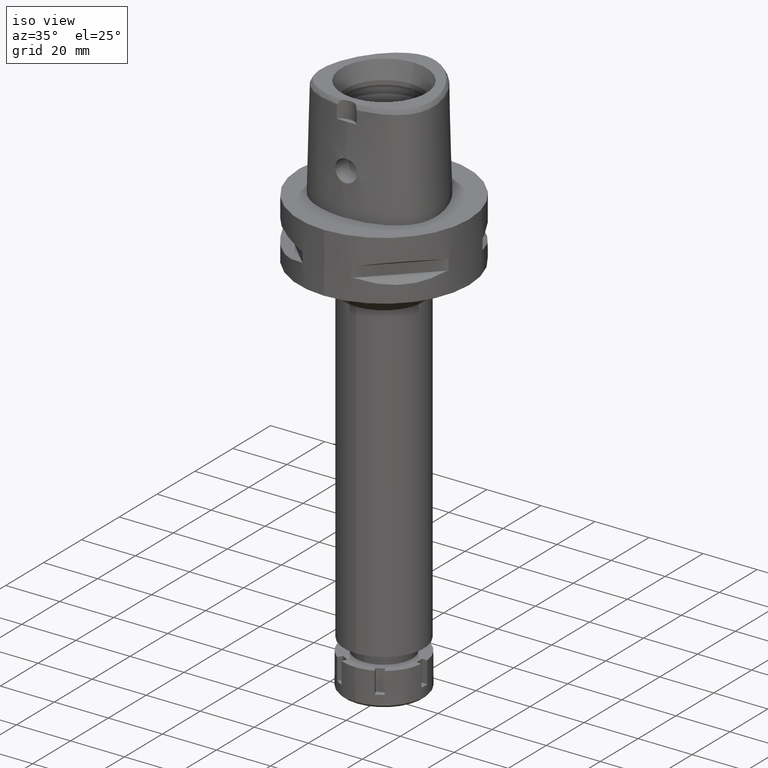
[diagram: clean part render]
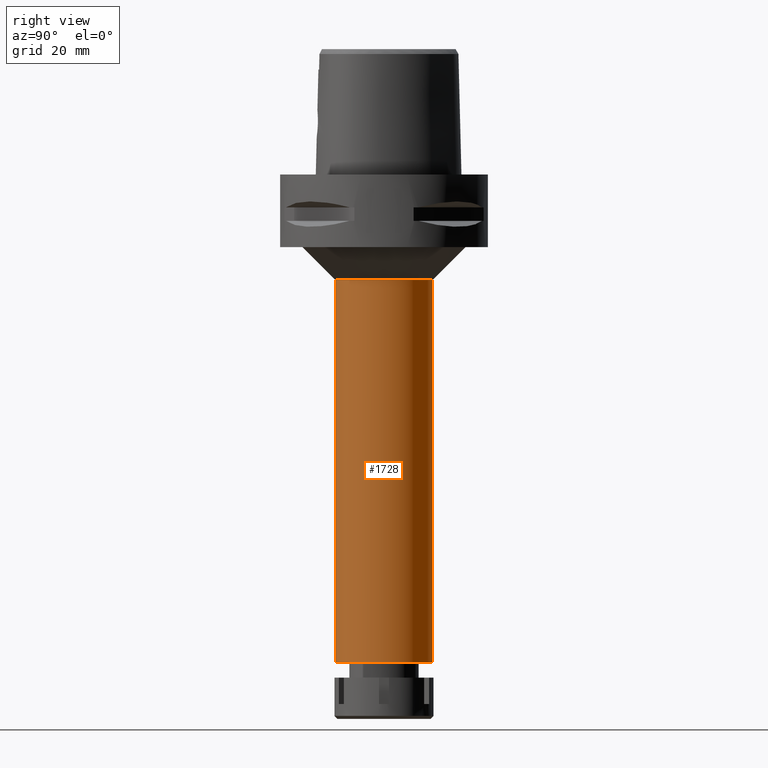
[diagram: tour spotlight — one face highlighted and labeled with its STEP entity id]
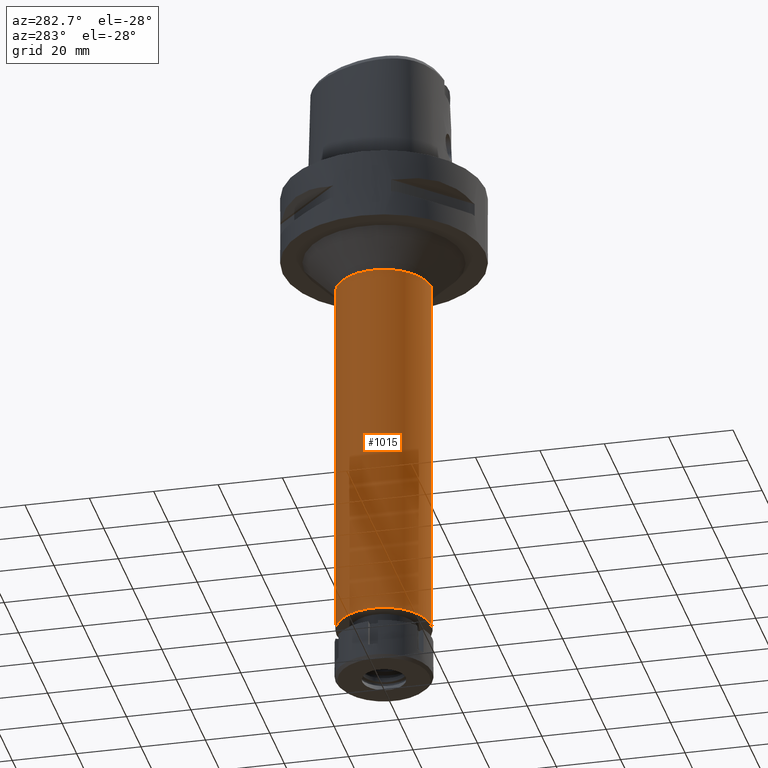
[diagram: tour spotlight — one face highlighted and labeled with its STEP entity id]
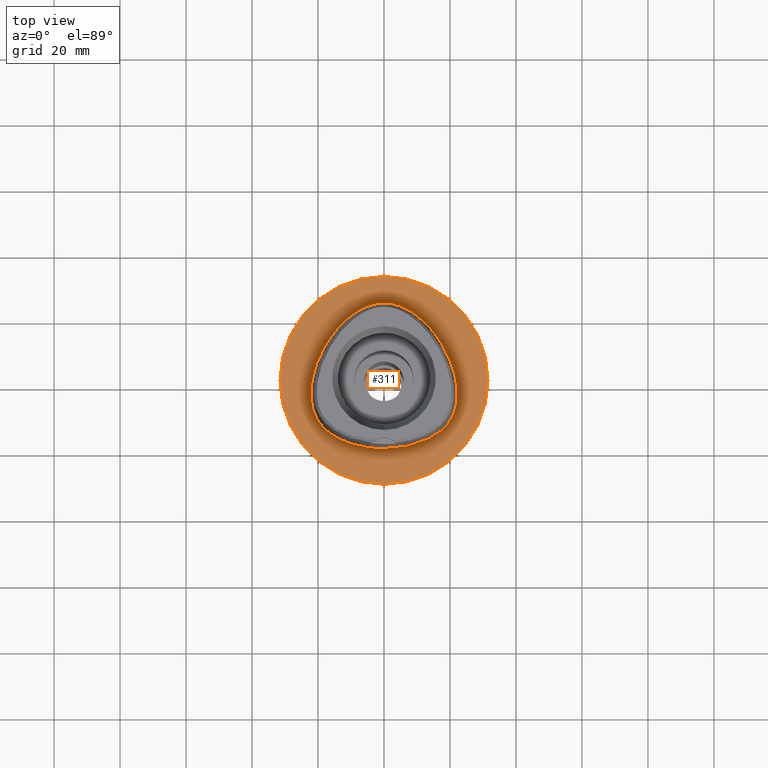
[diagram: tour spotlight — one face highlighted and labeled with its STEP entity id]
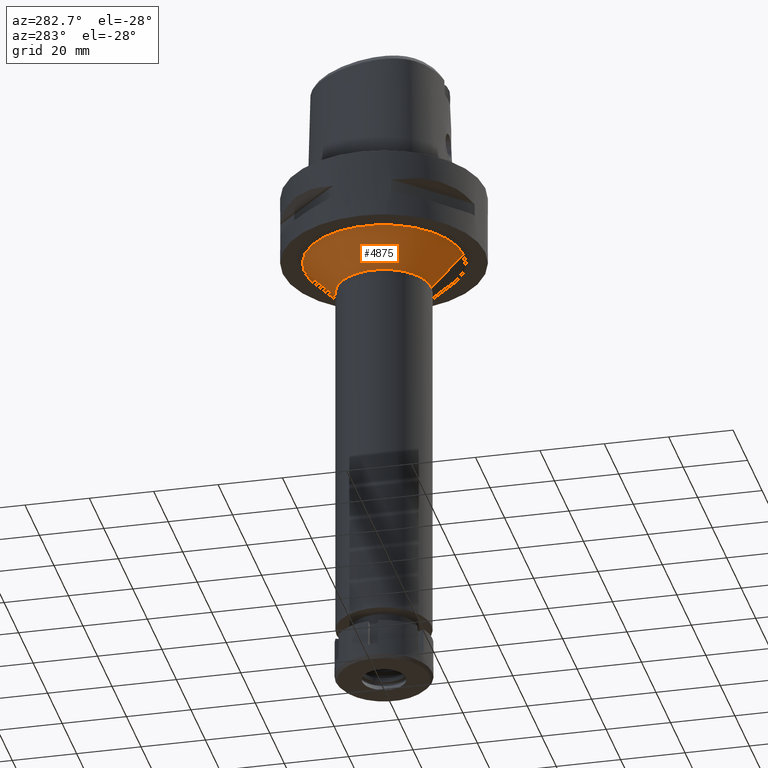
[diagram: tour spotlight — one face highlighted and labeled with its STEP entity id]
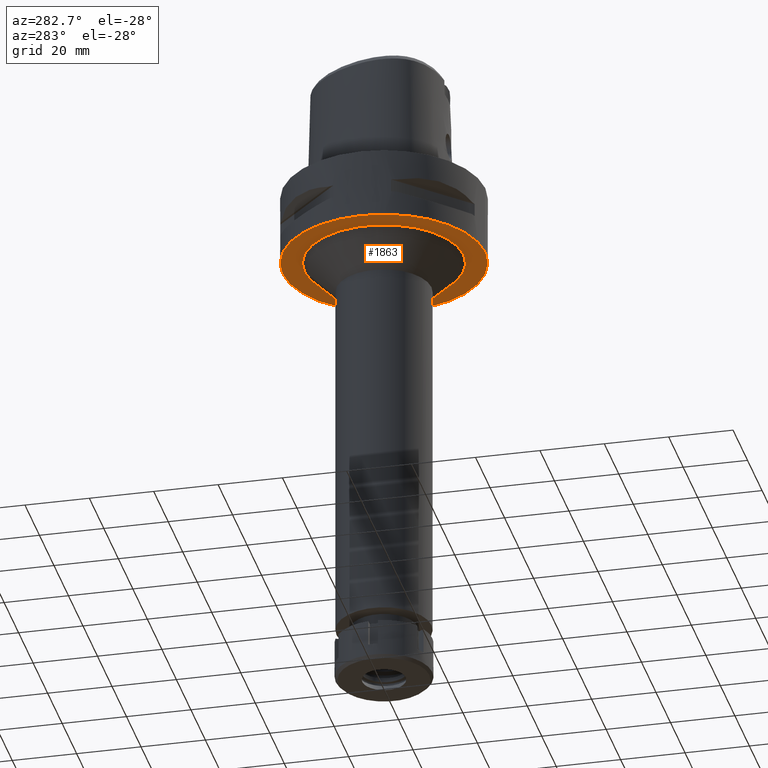
[diagram: tour spotlight — one face highlighted and labeled with its STEP entity id]
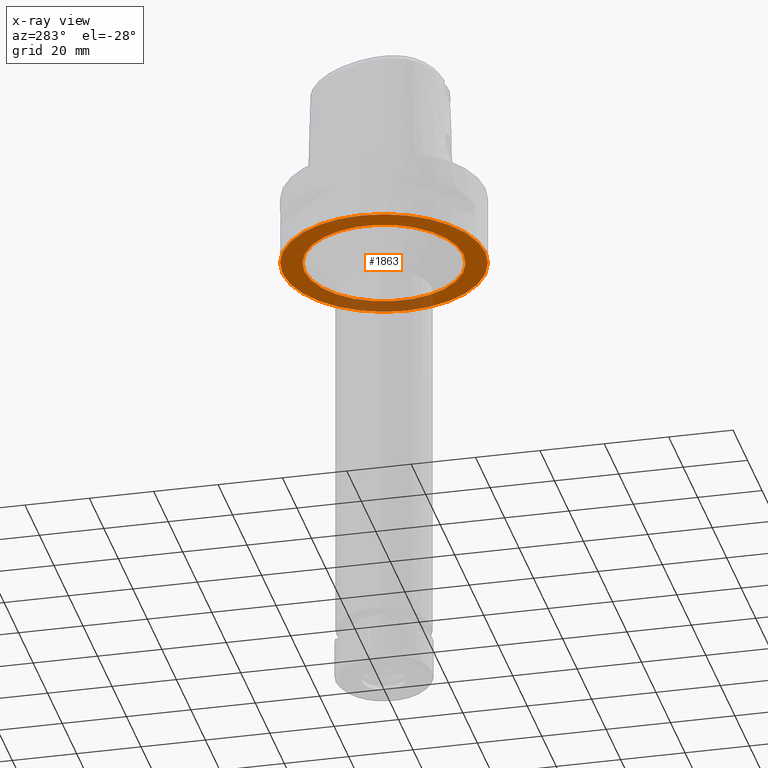
[diagram: x-ray of the same camera — body ghosted, this tour face saturated]
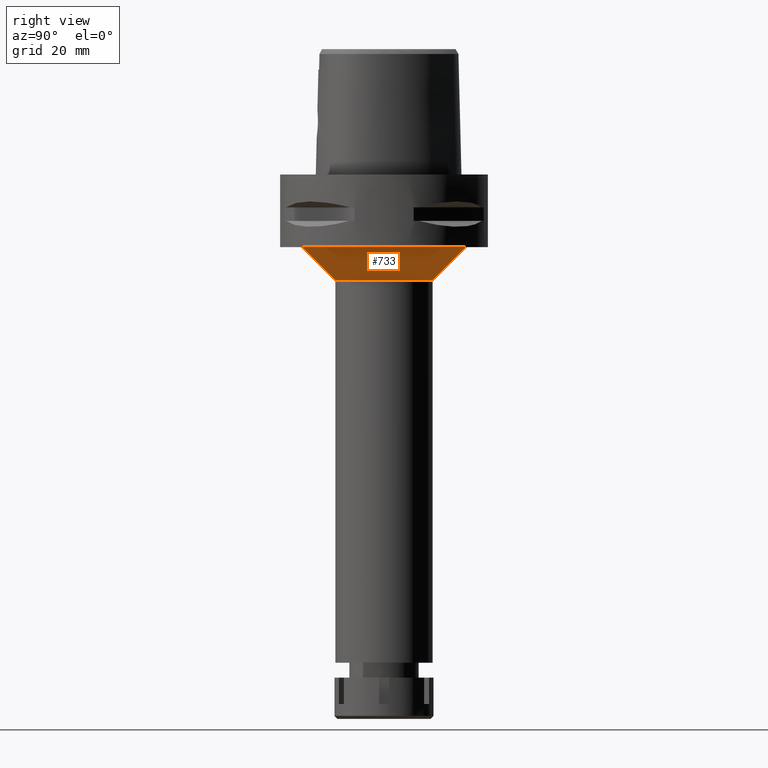
[diagram: tour spotlight — one face highlighted and labeled with its STEP entity id]
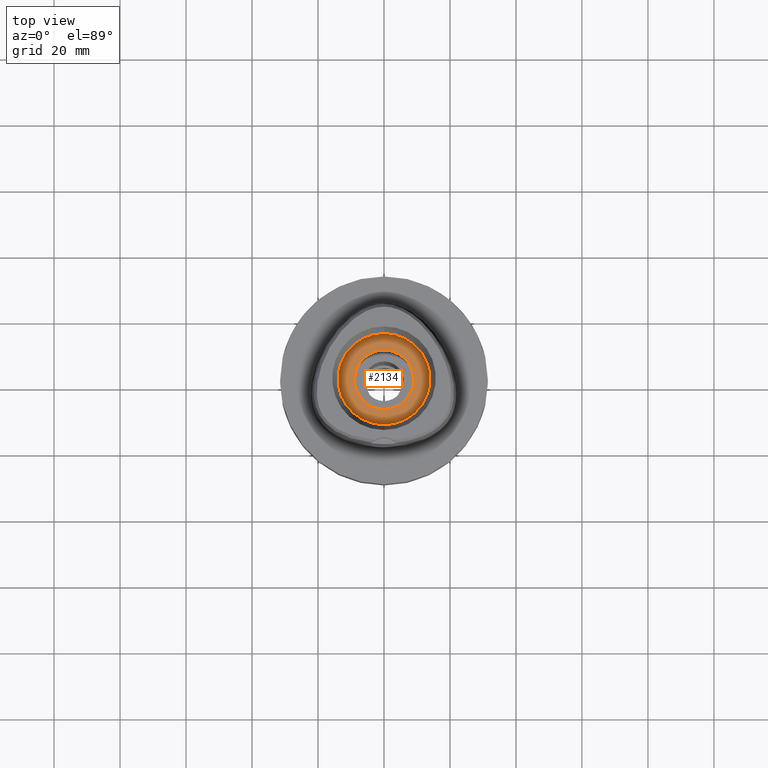
[diagram: tour spotlight — one face highlighted and labeled with its STEP entity id]
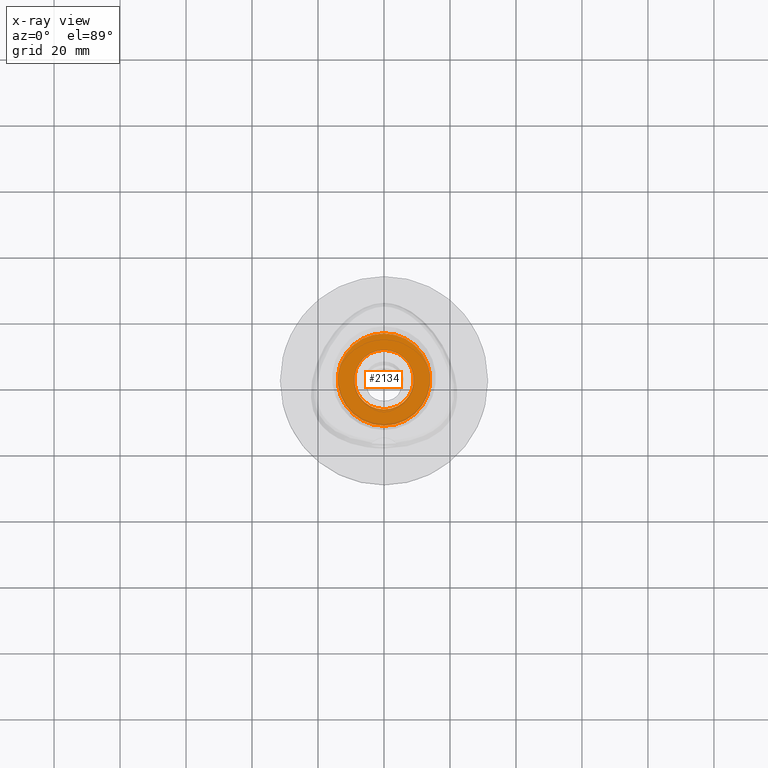
[diagram: x-ray of the same camera — body ghosted, this tour face saturated]
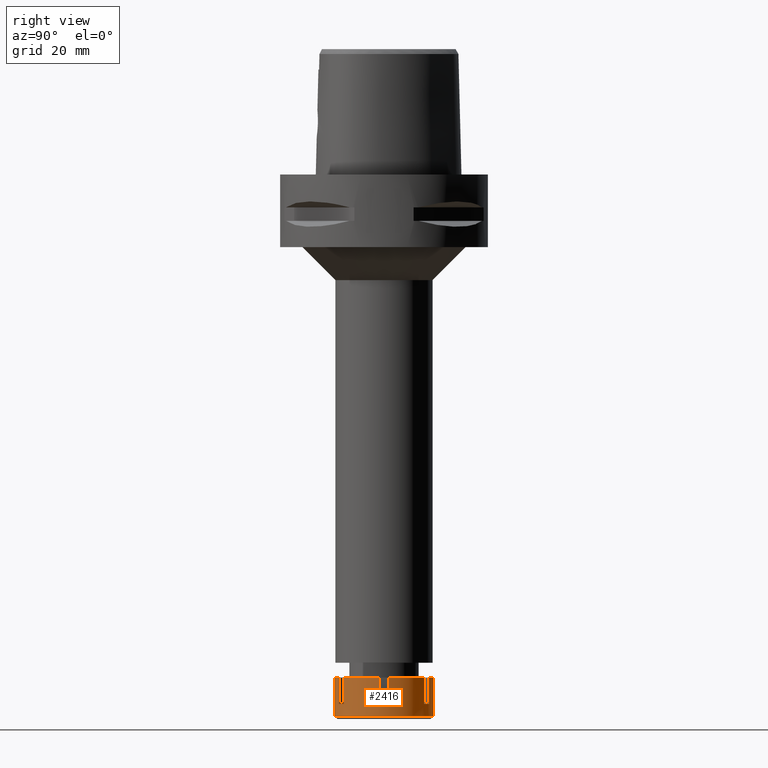
[diagram: tour spotlight — one face highlighted and labeled with its STEP entity id]
A machine part: a face-by-face anatomy tour. The part has 112 B-rep faces; the first image is the clean iso view, then the 8 largest visible faces are spotlighted one at a time (largest first), each with its STEP entity span.

Face 1 — right view, entity #1728. In plain terms, the highlighted cylindrical surface (partial cylindrical patch) has radius 14.75 mm, axis along (0, 0, -1).
Definition (entity closure, byte-faithful):
#256 = CARTESIAN_POINT ( 'NONE',  ( 0.0000000000000000000, -14.75000000000000000, -32.00000000000000000 ) ) ;
#756 = DIRECTION ( 'NONE',  ( 0.0000000000000000000, 0.0000000000000000000, -1.000000000000000000 ) ) ;
#933 = DIRECTION ( 'NONE',  ( 0.0000000000000000000, -1.000000000000000000, 0.0000000000000000000 ) ) ;
#958 = VERTEX_POINT ( 'NONE', #5063 ) ;
#977 = VERTEX_POINT ( 'NONE', #1215 ) ;
#1108 = FACE_OUTER_BOUND ( 'NONE', #4497, .T. ) ;
#1169 = CIRCLE ( 'NONE', #3490, 14.75000000000000000 ) ;
#1196 = CARTESIAN_POINT ( 'NONE',  ( 0.0000000000000000000, 1.321393896280000074E-14, 7.900000000000000355 ) ) ;
#1215 = CARTESIAN_POINT ( 'NONE',  ( 0.0000000000000000000, 14.75000000000000000, -32.00000000000000000 ) ) ;
#1284 = CARTESIAN_POINT ( 'NONE',  ( 0.0000000000000000000, -14.75000000000000000, -148.0000000000000000 ) ) ;
#1375 = EDGE_CURVE ( 'NONE', #2932, #4360, #3815, .T. ) ;
#1426 = CIRCLE ( 'NONE', #4218, 14.75000000000000000 ) ;
#1711 = LINE ( 'NONE', #3817, #5188 ) ;
#1728 = ADVANCED_FACE ( 'NONE', ( #1108 ), #5374, .T. ) ;
#1809 = DIRECTION ( 'NONE',  ( 0.0000000000000000000, 0.0000000000000000000, 1.000000000000000000 ) ) ;
#2004 = ORIENTED_EDGE ( 'NONE', *, *, #4324, .T. ) ;
#2008 = EDGE_CURVE ( 'NONE', #977, #2932, #1426, .T. ) ;
#2069 = DIRECTION ( 'NONE',  ( 0.0000000000000000000, 0.0000000000000000000, -1.000000000000000000 ) ) ;
#2656 = EDGE_CURVE ( 'NONE', #977, #958, #1711, .T. ) ;
#2916 = DIRECTION ( 'NONE',  ( 0.0000000000000000000, -1.000000000000000000, 0.0000000000000000000 ) ) ;
#2932 = VERTEX_POINT ( 'NONE', #256 ) ;
#3486 = AXIS2_PLACEMENT_3D ( 'NONE', #1196, #2069, #2916 ) ;
#3490 = AXIS2_PLACEMENT_3D ( 'NONE', #4684, #1809, #933 ) ;
#3815 = LINE ( 'NONE', #5522, #4396 ) ;
#3817 = CARTESIAN_POINT ( 'NONE',  ( 0.0000000000000000000, 14.75000000000000000, -32.00000000000000000 ) ) ;
#3876 = DIRECTION ( 'NONE',  ( 0.0000000000000000000, 0.0000000000000000000, -1.000000000000000000 ) ) ;
#4218 = AXIS2_PLACEMENT_3D ( 'NONE', #5540, #3876, #5513 ) ;
#4324 = EDGE_CURVE ( 'NONE', #4360, #958, #1169, .T. ) ;
#4341 = ORIENTED_EDGE ( 'NONE', *, *, #2008, .T. ) ;
#4360 = VERTEX_POINT ( 'NONE', #1284 ) ;
#4396 = VECTOR ( 'NONE', #756, 1000.000000000000000 ) ;
#4497 = EDGE_LOOP ( 'NONE', ( #4341, #4812, #2004, #5476 ) ) ;
#4684 = CARTESIAN_POINT ( 'NONE',  ( 0.0000000000000000000, 1.321393896280000074E-14, -148.0000000000000000 ) ) ;
#4812 = ORIENTED_EDGE ( 'NONE', *, *, #1375, .T. ) ;
#5063 = CARTESIAN_POINT ( 'NONE',  ( 0.0000000000000000000, 14.75000000000000000, -148.0000000000000000 ) ) ;
#5158 = DIRECTION ( 'NONE',  ( 0.0000000000000000000, 0.0000000000000000000, -1.000000000000000000 ) ) ;
#5188 = VECTOR ( 'NONE', #5158, 1000.000000000000000 ) ;
#5374 = CYLINDRICAL_SURFACE ( 'NONE', #3486, 14.75000000000000000 ) ;
#5476 = ORIENTED_EDGE ( 'NONE', *, *, #2656, .F. ) ;
#5513 = DIRECTION ( 'NONE',  ( 0.0000000000000000000, 1.000000000000000000, 0.0000000000000000000 ) ) ;
#5522 = CARTESIAN_POINT ( 'NONE',  ( 0.0000000000000000000, -14.75000000000000000, -32.00000000000000000 ) ) ;
#5540 = CARTESIAN_POINT ( 'NONE',  ( 0.0000000000000000000, 0.0000000000000000000, -32.00000000000000000 ) ) ;

Face 2 — auxiliary view, entity #1015. In plain terms, the highlighted cylindrical surface (partial cylindrical patch) has radius 14.75 mm, axis along (0, 0, -1).
Definition (entity closure, byte-faithful):
#256 = CARTESIAN_POINT ( 'NONE',  ( 0.0000000000000000000, -14.75000000000000000, -32.00000000000000000 ) ) ;
#370 = CARTESIAN_POINT ( 'NONE',  ( 0.0000000000000000000, 1.321393896280000074E-14, -148.0000000000000000 ) ) ;
#756 = DIRECTION ( 'NONE',  ( 0.0000000000000000000, 0.0000000000000000000, -1.000000000000000000 ) ) ;
#793 = AXIS2_PLACEMENT_3D ( 'NONE', #3278, #1113, #2440 ) ;
#958 = VERTEX_POINT ( 'NONE', #5063 ) ;
#977 = VERTEX_POINT ( 'NONE', #1215 ) ;
#1015 = ADVANCED_FACE ( 'NONE', ( #4709 ), #2160, .T. ) ;
#1113 = DIRECTION ( 'NONE',  ( 0.0000000000000000000, 0.0000000000000000000, -1.000000000000000000 ) ) ;
#1215 = CARTESIAN_POINT ( 'NONE',  ( 0.0000000000000000000, 14.75000000000000000, -32.00000000000000000 ) ) ;
#1284 = CARTESIAN_POINT ( 'NONE',  ( 0.0000000000000000000, -14.75000000000000000, -148.0000000000000000 ) ) ;
#1375 = EDGE_CURVE ( 'NONE', #2932, #4360, #3815, .T. ) ;
#1535 = CIRCLE ( 'NONE', #3764, 14.75000000000000000 ) ;
#1711 = LINE ( 'NONE', #3817, #5188 ) ;
#1733 = CARTESIAN_POINT ( 'NONE',  ( 0.0000000000000000000, 1.321393896280000074E-14, 7.900000000000000355 ) ) ;
#1822 = ORIENTED_EDGE ( 'NONE', *, *, #2040, .T. ) ;
#2002 = ORIENTED_EDGE ( 'NONE', *, *, #2656, .T. ) ;
#2040 = EDGE_CURVE ( 'NONE', #958, #4360, #1535, .T. ) ;
#2080 = AXIS2_PLACEMENT_3D ( 'NONE', #1733, #3446, #3020 ) ;
#2160 = CYLINDRICAL_SURFACE ( 'NONE', #2080, 14.75000000000000000 ) ;
#2440 = DIRECTION ( 'NONE',  ( 0.0000000000000000000, -1.000000000000000000, 0.0000000000000000000 ) ) ;
#2651 = DIRECTION ( 'NONE',  ( 0.0000000000000000000, 1.000000000000000000, 0.0000000000000000000 ) ) ;
#2656 = EDGE_CURVE ( 'NONE', #977, #958, #1711, .T. ) ;
#2814 = EDGE_LOOP ( 'NONE', ( #1822, #5071, #4210, #2002 ) ) ;
#2932 = VERTEX_POINT ( 'NONE', #256 ) ;
#3020 = DIRECTION ( 'NONE',  ( 0.0000000000000000000, -1.000000000000000000, 0.0000000000000000000 ) ) ;
#3278 = CARTESIAN_POINT ( 'NONE',  ( 0.0000000000000000000, 0.0000000000000000000, -32.00000000000000000 ) ) ;
#3446 = DIRECTION ( 'NONE',  ( 0.0000000000000000000, 0.0000000000000000000, -1.000000000000000000 ) ) ;
#3764 = AXIS2_PLACEMENT_3D ( 'NONE', #370, #5148, #2651 ) ;
#3815 = LINE ( 'NONE', #5522, #4396 ) ;
#3817 = CARTESIAN_POINT ( 'NONE',  ( 0.0000000000000000000, 14.75000000000000000, -32.00000000000000000 ) ) ;
#4210 = ORIENTED_EDGE ( 'NONE', *, *, #4738, .T. ) ;
#4360 = VERTEX_POINT ( 'NONE', #1284 ) ;
#4396 = VECTOR ( 'NONE', #756, 1000.000000000000000 ) ;
#4709 = FACE_OUTER_BOUND ( 'NONE', #2814, .T. ) ;
#4738 = EDGE_CURVE ( 'NONE', #2932, #977, #5539, .T. ) ;
#5063 = CARTESIAN_POINT ( 'NONE',  ( 0.0000000000000000000, 14.75000000000000000, -148.0000000000000000 ) ) ;
#5071 = ORIENTED_EDGE ( 'NONE', *, *, #1375, .F. ) ;
#5148 = DIRECTION ( 'NONE',  ( 0.0000000000000000000, 0.0000000000000000000, 1.000000000000000000 ) ) ;
#5158 = DIRECTION ( 'NONE',  ( 0.0000000000000000000, 0.0000000000000000000, -1.000000000000000000 ) ) ;
#5188 = VECTOR ( 'NONE', #5158, 1000.000000000000000 ) ;
#5522 = CARTESIAN_POINT ( 'NONE',  ( 0.0000000000000000000, -14.75000000000000000, -32.00000000000000000 ) ) ;
#5539 = CIRCLE ( 'NONE', #793, 14.75000000000000000 ) ;

Face 3 — top view, entity #311. In plain terms, the highlighted planar face has unit normal (0, 0, -1).
Definition (entity closure, byte-faithful):
#39 = CARTESIAN_POINT ( 'NONE',  ( 0.0000000000000000000, 1.224646799146999965E-14, 0.0000000000000000000 ) ) ;
#49 = EDGE_CURVE ( 'NONE', #1065, #1573, #5286, .T. ) ;
#53 = ORIENTED_EDGE ( 'NONE', *, *, #5172, .F. ) ;
#79 = CARTESIAN_POINT ( 'NONE',  ( 20.74942740880193526, 4.657187500000056879, 5.247538514829841461E-14 ) ) ;
#96 = FACE_BOUND ( 'NONE', #3449, .T. ) ;
#103 = CARTESIAN_POINT ( 'NONE',  ( 21.55524826009751038, -8.996025390624708962, 5.247538514829841461E-14 ) ) ;
#131 = CARTESIAN_POINT ( 'NONE',  ( 14.40795638957788327, 15.64093750000730765, 5.247538514829841461E-14 ) ) ;
#198 = CARTESIAN_POINT ( 'NONE',  ( 3.796788964451000297E-11, 23.47499999999000053, 6.972200594645999482E-14 ) ) ;
#311 = ADVANCED_FACE ( 'NONE', ( #4389, #96 ), #2627, .F. ) ;
#314 = DIRECTION ( 'NONE',  ( 0.0000000000000000000, 0.0000000000000000000, -1.000000000000000000 ) ) ;
#340 = CARTESIAN_POINT ( 'NONE',  ( -14.67337966171797170, -17.21410159326269707, -1.411724549380769661E-06 ) ) ;
#456 = CARTESIAN_POINT ( 'NONE',  ( 3.796788964451000297E-11, 23.47499999999000053, 6.972200594645999482E-14 ) ) ;
#482 = CARTESIAN_POINT ( 'NONE',  ( 14.67337964420057617, -17.21410156249941892, 5.247538514829841461E-14 ) ) ;
#530 = DIRECTION ( 'NONE',  ( 0.0000000000000000000, -1.000000000000000000, 0.0000000000000000000 ) ) ;
#666 = CARTESIAN_POINT ( 'NONE',  ( -22.24453911394987671, -4.100468749792255174, -1.411724549380769661E-06 ) ) ;
#774 = VERTEX_POINT ( 'NONE', #1432 ) ;
#801 = CARTESIAN_POINT ( 'NONE',  ( -6.341471025482558588, -20.29812503493905851, -1.411724549380769661E-06 ) ) ;
#911 = CARTESIAN_POINT ( 'NONE',  ( 2.113823673067833475, -20.67499999999701288, 5.247538514829841461E-14 ) ) ;
#963 = CARTESIAN_POINT ( 'NONE',  ( 6.341471019211397220, -20.29812500000326736, 5.247538514829842092E-14 ) ) ;
#1021 = CARTESIAN_POINT ( 'NONE',  ( 11.23259756728058711, -18.89324218749616335, 5.247538514829841461E-14 ) ) ;
#1054 = CARTESIAN_POINT ( 'NONE',  ( -19.64947368723442622, -12.82525392703348643, -1.411724549380769661E-06 ) ) ;
#1065 = VERTEX_POINT ( 'NONE', #5259 ) ;
#1129 = ORIENTED_EDGE ( 'NONE', *, *, #5058, .F. ) ;
#1251 = CARTESIAN_POINT ( 'NONE',  ( 0.0000000000000000000, 1.321393896280000074E-14, 2.131628207279999844E-14 ) ) ;
#1305 = CARTESIAN_POINT ( 'NONE',  ( 0.0000000000000000000, -31.50000000000000000, 2.131628207279999844E-14 ) ) ;
#1330 = CARTESIAN_POINT ( 'NONE',  ( -5.544119294011000731E-12, -20.67499999999999716, 7.264559324463998182E-14 ) ) ;
#1385 = CARTESIAN_POINT ( 'NONE',  ( 2.564517726975040102, 23.29328124999458538, 5.247538514829841461E-14 ) ) ;
#1388 = CARTESIAN_POINT ( 'NONE',  ( -18.56841067713164861, -14.16937990716558282, -1.411724549380769661E-06 ) ) ;
#1431 = AXIS2_PLACEMENT_3D ( 'NONE', #39, #2227, #530 ) ;
#1432 = CARTESIAN_POINT ( 'NONE',  ( -5.544119294011000731E-12, -20.67499999999999716, 7.264559324463998182E-14 ) ) ;
#1449 = CARTESIAN_POINT ( 'NONE',  ( 16.95889172594192829, -15.67838867187615293, 5.247538514829841461E-14 ) ) ;
#1453 = CARTESIAN_POINT ( 'NONE',  ( -10.74572893341513868, 19.17433596467954260, -1.411724549380769661E-06 ) ) ;
#1573 = VERTEX_POINT ( 'NONE', #1305 ) ;
#1812 = CARTESIAN_POINT ( 'NONE',  ( 5.098437017283345973, 22.52602539062325704, 5.247538514829841461E-14 ) ) ;
#1870 = CARTESIAN_POINT ( 'NONE',  ( 0.8548392423472973567, 23.47500000000328413, 5.247538514829841461E-14 ) ) ;
#1935 = CARTESIAN_POINT ( 'NONE',  ( -0.8548392448069198624, 23.47500003529131263, -1.411724549380769661E-06 ) ) ;
#2044 = DIRECTION ( 'NONE',  ( 0.0000000000000000000, -1.000000000000000000, 0.0000000000000000000 ) ) ;
#2184 = CARTESIAN_POINT ( 'NONE',  ( 19.64947365864038176, -12.82525390625538364, 5.247538514829841461E-14 ) ) ;
#2227 = DIRECTION ( 'NONE',  ( 0.0000000000000000000, 0.0000000000000000000, -1.000000000000000000 ) ) ;
#2327 = CARTESIAN_POINT ( 'NONE',  ( -5.098437030456695496, 22.52602542353450232, -1.411724549380769661E-06 ) ) ;
#2388 = CARTESIAN_POINT ( 'NONE',  ( -20.34961801618811705, -11.74885743954756911, -1.411724549380769661E-06 ) ) ;
#2627 = PLANE ( 'NONE',  #1431 ) ;
#2635 = CARTESIAN_POINT ( 'NONE',  ( 20.93173252211384749, -10.60431640624865146, 5.247538514829841461E-14 ) ) ;
#2662 = CARTESIAN_POINT ( 'NONE',  ( 18.06826688526421520, 10.43171875000094850, 5.247538514829841461E-14 ) ) ;
#2689 = CARTESIAN_POINT ( 'NONE',  ( 20.34961798556575729, -11.74885742187154847, 5.247538514829841461E-14 ) ) ;
#2714 = CARTESIAN_POINT ( 'NONE',  ( 18.56841065141134095, -14.16937988280768224, 5.247538514829841461E-14 ) ) ;
#2745 = CARTESIAN_POINT ( 'NONE',  ( -20.74942744219112001, 4.657187512033544863, -1.411724549380769661E-06 ) ) ;
#2756 = AXIS2_PLACEMENT_3D ( 'NONE', #4234, #314, #2044 ) ;
#2854 = EDGE_CURVE ( 'NONE', #774, #4100, #4170, .T. ) ;
#2925 = CARTESIAN_POINT ( 'NONE',  ( 3.796788964451000297E-11, 23.47499999999000053, 6.972200594645999482E-14 ) ) ;
#3079 = ORIENTED_EDGE ( 'NONE', *, *, #49, .F. ) ;
#3167 = CARTESIAN_POINT ( 'NONE',  ( -18.06826691598368129, 10.43171876774247764, -1.411724549380769661E-06 ) ) ;
#3228 = CARTESIAN_POINT ( 'NONE',  ( -21.97832651281482441, -0.2810937438255229348, -1.411724549380769661E-06 ) ) ;
#3449 = EDGE_LOOP ( 'NONE', ( #1129, #3566 ) ) ;
#3548 = CARTESIAN_POINT ( 'NONE',  ( 22.24453907854481116, -4.100468750000057838, 5.247538514829841461E-14 ) ) ;
#3566 = ORIENTED_EDGE ( 'NONE', *, *, #2854, .F. ) ;
#3613 = CARTESIAN_POINT ( 'NONE',  ( -21.55524829404446763, -8.996025400715897291, -1.411724549380769661E-06 ) ) ;
#3640 = CARTESIAN_POINT ( 'NONE',  ( -7.571159452231826847, 21.31457034305277531, -1.411724549380769661E-06 ) ) ;
#3830 = CARTESIAN_POINT ( 'NONE',  ( -2.113823675162337601, -20.67500003529016439, -1.411724549380769661E-06 ) ) ;
#3967 = CARTESIAN_POINT ( 'NONE',  ( 22.05732874322499981, -6.847636718749559925, 5.247538514829841461E-14 ) ) ;
#3997 = CARTESIAN_POINT ( 'NONE',  ( 21.97832647786692206, -0.2810937500000119660, 5.247538514829841461E-14 ) ) ;
#4066 = EDGE_LOOP ( 'NONE', ( #3079, #53 ) ) ;
#4100 = VERTEX_POINT ( 'NONE', #2925 ) ;
#4170 = B_SPLINE_CURVE_WITH_KNOTS ( 'NONE', 3,
 ( #1330, #911, #963, #1021, #482, #1449, #2714, #2184, #2689, #2635, #103, #3967, #3548, #3997, #79, #2662, #131, #4867, #5262, #1812, #1385, #1870, #456 ),
 .UNSPECIFIED., .F., .F.,
 ( 4, 1, 1, 1, 1, 1, 1, 1, 1, 1, 1, 1, 1, 1, 1, 1, 1, 1, 1, 1, 4 ),
 ( 0.0000000000000000000, 0.08333333333337000770, 0.1666666666667000196, 0.2083333333333000081, 0.2500000000000000000, 0.2916666666666999919, 0.3124999999998999689, 0.3333333333332000326, 0.3541666666666000163, 0.3749999999998999689, 0.4166666666666000163, 0.4583333333332000326, 0.4999999999998999689, 0.5833333333331000015, 0.6666666666664999852, 0.7499999999998000488, 0.8333333333329999704, 0.8749999999997000177, 0.9166666666664000651, 0.9583333333329999704, 1.000000000000000000 ),
 .UNSPECIFIED. ) ;
#4203 = CARTESIAN_POINT ( 'NONE',  ( -11.23259757939877446, -18.89324222085503635, -1.411724549380769661E-06 ) ) ;
#4234 = CARTESIAN_POINT ( 'NONE',  ( 0.0000000000000000000, 1.321393896280000074E-14, 2.131628207279999844E-14 ) ) ;
#4259 = CARTESIAN_POINT ( 'NONE',  ( -5.544119294011000731E-12, -20.67499999999999716, 7.264559324463998182E-14 ) ) ;
#4262 = DIRECTION ( 'NONE',  ( 0.0000000000000000000, 0.0000000000000000000, -1.000000000000000000 ) ) ;
#4363 = CIRCLE ( 'NONE', #2756, 31.50000000000000000 ) ;
#4389 = FACE_OUTER_BOUND ( 'NONE', #4066, .T. ) ;
#4867 = CARTESIAN_POINT ( 'NONE',  ( 10.74572891058538282, 19.17433593750135046, 5.247538514829841461E-14 ) ) ;
#4871 = CARTESIAN_POINT ( 'NONE',  ( -22.05732877830265437, -6.847636723792143165, -1.411724549380769661E-06 ) ) ;
#4902 = CARTESIAN_POINT ( 'NONE',  ( -20.93173255440739666, -10.60431642063138646, -1.411724549380769661E-06 ) ) ;
#5030 = AXIS2_PLACEMENT_3D ( 'NONE', #1251, #4262, #5464 ) ;
#5058 = EDGE_CURVE ( 'NONE', #4100, #774, #5548, .T. ) ;
#5070 = CARTESIAN_POINT ( 'NONE',  ( -16.95889174783916786, -15.67838869973340188, -1.411724549380769661E-06 ) ) ;
#5172 = EDGE_CURVE ( 'NONE', #1573, #1065, #4363, .T. ) ;
#5259 = CARTESIAN_POINT ( 'NONE',  ( 0.0000000000000000000, 31.50000000000000000, 2.131628207279999844E-14 ) ) ;
#5262 = CARTESIAN_POINT ( 'NONE',  ( 7.571159434350826167, 21.31457031249730605, 5.247538514829841461E-14 ) ) ;
#5286 = CIRCLE ( 'NONE', #5030, 31.50000000000000000 ) ;
#5300 = CARTESIAN_POINT ( 'NONE',  ( -2.564517734211617661, 23.29328128475557946, -1.411724549380769661E-06 ) ) ;
#5355 = CARTESIAN_POINT ( 'NONE',  ( -14.40795641669617666, 15.64093752289818440, -1.411724549380769661E-06 ) ) ;
#5464 = DIRECTION ( 'NONE',  ( 0.0000000000000000000, 1.000000000000000000, 0.0000000000000000000 ) ) ;
#5548 = B_SPLINE_CURVE_WITH_KNOTS ( 'NONE', 3,
 ( #198, #1935, #5300, #2327, #3640, #1453, #5355, #3167, #2745, #3228, #666, #4871, #3613, #4902, #2388, #1054, #1388, #5070, #340, #4203, #801, #3830, #4259 ),
 .UNSPECIFIED., .F., .F.,
 ( 4, 1, 1, 1, 1, 1, 1, 1, 1, 1, 1, 1, 1, 1, 1, 1, 1, 1, 1, 1, 4 ),
 ( 0.0000000000000000000, 0.04166666666724999635, 0.08333333333387001052, 0.1250000000004999889, 0.1666666666672000086, 0.2500000000004000134, 0.3333333333335999904, 0.4166666666670000296, 0.5000000000001999512, 0.5416666666668999985, 0.5833333333333999837, 0.6250000000001000311, 0.6458333333333999837, 0.6666666666667000474, 0.6875000000000000000, 0.7083333333333000637, 0.7500000000000000000, 0.7916666666666000163, 0.8333333333332000326, 0.9166666666664999852, 1.000000000000000000 ),
 .UNSPECIFIED. ) ;

Face 4 — auxiliary view, entity #4875. In plain terms, the highlighted conical surface has half-angle 45 deg.
Definition (entity closure, byte-faithful):
#256 = CARTESIAN_POINT ( 'NONE',  ( 0.0000000000000000000, -14.75000000000000000, -32.00000000000000000 ) ) ;
#373 = DIRECTION ( 'NONE',  ( 0.0000000000000000000, 0.0000000000000000000, 1.000000000000000000 ) ) ;
#446 = CIRCLE ( 'NONE', #3591, 24.75000000000000000 ) ;
#642 = CARTESIAN_POINT ( 'NONE',  ( 0.0000000000000000000, 24.75000000000000000, -22.00000000000000000 ) ) ;
#793 = AXIS2_PLACEMENT_3D ( 'NONE', #3278, #1113, #2440 ) ;
#977 = VERTEX_POINT ( 'NONE', #1215 ) ;
#1113 = DIRECTION ( 'NONE',  ( 0.0000000000000000000, 0.0000000000000000000, -1.000000000000000000 ) ) ;
#1183 = DIRECTION ( 'NONE',  ( 0.0000000000000000000, 0.0000000000000000000, -1.000000000000000000 ) ) ;
#1209 = EDGE_CURVE ( 'NONE', #3611, #977, #1999, .T. ) ;
#1215 = CARTESIAN_POINT ( 'NONE',  ( 0.0000000000000000000, 14.75000000000000000, -32.00000000000000000 ) ) ;
#1381 = ORIENTED_EDGE ( 'NONE', *, *, #1434, .T. ) ;
#1434 = EDGE_CURVE ( 'NONE', #5022, #3611, #446, .T. ) ;
#1999 = LINE ( 'NONE', #642, #4946 ) ;
#2098 = DIRECTION ( 'NONE',  ( 0.0000000000000000000, 1.000000000000000000, 0.0000000000000000000 ) ) ;
#2440 = DIRECTION ( 'NONE',  ( 0.0000000000000000000, -1.000000000000000000, 0.0000000000000000000 ) ) ;
#2549 = CARTESIAN_POINT ( 'NONE',  ( 0.0000000000000000000, 0.0000000000000000000, -27.00000000000000000 ) ) ;
#2684 = CARTESIAN_POINT ( 'NONE',  ( 0.0000000000000000000, -24.75000000000000000, -22.00000000000000000 ) ) ;
#2903 = DIRECTION ( 'NONE',  ( 0.0000000000000000000, -1.000000000000000000, 0.0000000000000000000 ) ) ;
#2932 = VERTEX_POINT ( 'NONE', #256 ) ;
#2953 = EDGE_LOOP ( 'NONE', ( #3992, #4139, #1381, #5421 ) ) ;
#3112 = VECTOR ( 'NONE', #5233, 1000.000000000000114 ) ;
#3222 = LINE ( 'NONE', #2684, #3112 ) ;
#3278 = CARTESIAN_POINT ( 'NONE',  ( 0.0000000000000000000, 0.0000000000000000000, -32.00000000000000000 ) ) ;
#3472 = CONICAL_SURFACE ( 'NONE', #3833, 19.75000000000000000, 0.7853981633972997312 ) ;
#3591 = AXIS2_PLACEMENT_3D ( 'NONE', #5108, #1183, #2903 ) ;
#3611 = VERTEX_POINT ( 'NONE', #4888 ) ;
#3805 = FACE_OUTER_BOUND ( 'NONE', #2953, .T. ) ;
#3833 = AXIS2_PLACEMENT_3D ( 'NONE', #2549, #373, #2098 ) ;
#3992 = ORIENTED_EDGE ( 'NONE', *, *, #4738, .F. ) ;
#4139 = ORIENTED_EDGE ( 'NONE', *, *, #4507, .F. ) ;
#4507 = EDGE_CURVE ( 'NONE', #5022, #2932, #3222, .T. ) ;
#4738 = EDGE_CURVE ( 'NONE', #2932, #977, #5539, .T. ) ;
#4845 = CARTESIAN_POINT ( 'NONE',  ( 0.0000000000000000000, -24.75000000000000000, -22.00000000000000000 ) ) ;
#4875 = ADVANCED_FACE ( 'NONE', ( #3805 ), #3472, .T. ) ;
#4888 = CARTESIAN_POINT ( 'NONE',  ( 0.0000000000000000000, 24.75000000000000000, -22.00000000000000000 ) ) ;
#4946 = VECTOR ( 'NONE', #4972, 1000.000000000000114 ) ;
#4972 = DIRECTION ( 'NONE',  ( 0.0000000000000000000, -0.7071067811865474617, -0.7071067811865474617 ) ) ;
#5022 = VERTEX_POINT ( 'NONE', #4845 ) ;
#5108 = CARTESIAN_POINT ( 'NONE',  ( 0.0000000000000000000, 0.0000000000000000000, -22.00000000000000000 ) ) ;
#5233 = DIRECTION ( 'NONE',  ( 0.0000000000000000000, 0.7071067811865474617, -0.7071067811865474617 ) ) ;
#5421 = ORIENTED_EDGE ( 'NONE', *, *, #1209, .T. ) ;
#5539 = CIRCLE ( 'NONE', #793, 14.75000000000000000 ) ;

Face 5 — auxiliary view, entity #1863. An x-ray twin of the same camera follows (body ghosted, this face saturated) — the face is partly hidden behind the body. In plain terms, the highlighted planar face has unit normal (0, 0, -1).
Definition (entity closure, byte-faithful):
#95 = DIRECTION ( 'NONE',  ( 0.0000000000000000000, 0.0000000000000000000, -1.000000000000000000 ) ) ;
#138 = DIRECTION ( 'NONE',  ( 0.0000000000000000000, -1.000000000000000000, 0.0000000000000000000 ) ) ;
#173 = CARTESIAN_POINT ( 'NONE',  ( 0.0000000000000000000, 1.321393896280000074E-14, -22.00000000000000000 ) ) ;
#349 = AXIS2_PLACEMENT_3D ( 'NONE', #173, #2723, #138 ) ;
#432 = CIRCLE ( 'NONE', #3572, 24.75000000000000000 ) ;
#446 = CIRCLE ( 'NONE', #3591, 24.75000000000000000 ) ;
#595 = CARTESIAN_POINT ( 'NONE',  ( 0.0000000000000000000, 31.50000000000000000, -22.00000000000000000 ) ) ;
#821 = AXIS2_PLACEMENT_3D ( 'NONE', #2596, #5199, #5449 ) ;
#1056 = ORIENTED_EDGE ( 'NONE', *, *, #3265, .F. ) ;
#1183 = DIRECTION ( 'NONE',  ( 0.0000000000000000000, 0.0000000000000000000, -1.000000000000000000 ) ) ;
#1434 = EDGE_CURVE ( 'NONE', #5022, #3611, #446, .T. ) ;
#1477 = EDGE_LOOP ( 'NONE', ( #1056, #1585 ) ) ;
#1585 = ORIENTED_EDGE ( 'NONE', *, *, #1434, .F. ) ;
#1772 = FACE_BOUND ( 'NONE', #1477, .T. ) ;
#1863 = ADVANCED_FACE ( 'NONE', ( #4310, #1772 ), #3898, .T. ) ;
#2037 = EDGE_LOOP ( 'NONE', ( #2362, #2165 ) ) ;
#2157 = CARTESIAN_POINT ( 'NONE',  ( 0.0000000000000000000, 0.0000000000000000000, -22.00000000000000000 ) ) ;
#2165 = ORIENTED_EDGE ( 'NONE', *, *, #2265, .F. ) ;
#2265 = EDGE_CURVE ( 'NONE', #4154, #2919, #3931, .T. ) ;
#2362 = ORIENTED_EDGE ( 'NONE', *, *, #2927, .F. ) ;
#2596 = CARTESIAN_POINT ( 'NONE',  ( 0.0000000000000000000, 0.0000000000000000000, -22.00000000000000000 ) ) ;
#2705 = DIRECTION ( 'NONE',  ( 0.0000000000000000000, 1.000000000000000000, 0.0000000000000000000 ) ) ;
#2723 = DIRECTION ( 'NONE',  ( 0.0000000000000000000, 0.0000000000000000000, 1.000000000000000000 ) ) ;
#2771 = CARTESIAN_POINT ( 'NONE',  ( 0.0000000000000000000, 1.321393896280000074E-14, -22.00000000000000000 ) ) ;
#2835 = DIRECTION ( 'NONE',  ( 0.0000000000000000000, 1.000000000000000000, 0.0000000000000000000 ) ) ;
#2903 = DIRECTION ( 'NONE',  ( 0.0000000000000000000, -1.000000000000000000, 0.0000000000000000000 ) ) ;
#2919 = VERTEX_POINT ( 'NONE', #595 ) ;
#2927 = EDGE_CURVE ( 'NONE', #2919, #4154, #2955, .T. ) ;
#2955 = CIRCLE ( 'NONE', #3568, 31.50000000000000000 ) ;
#3265 = EDGE_CURVE ( 'NONE', #3611, #5022, #432, .T. ) ;
#3568 = AXIS2_PLACEMENT_3D ( 'NONE', #2771, #4570, #2835 ) ;
#3572 = AXIS2_PLACEMENT_3D ( 'NONE', #2157, #95, #2705 ) ;
#3591 = AXIS2_PLACEMENT_3D ( 'NONE', #5108, #1183, #2903 ) ;
#3611 = VERTEX_POINT ( 'NONE', #4888 ) ;
#3898 = PLANE ( 'NONE',  #821 ) ;
#3931 = CIRCLE ( 'NONE', #349, 31.50000000000000000 ) ;
#4154 = VERTEX_POINT ( 'NONE', #4547 ) ;
#4310 = FACE_OUTER_BOUND ( 'NONE', #2037, .T. ) ;
#4547 = CARTESIAN_POINT ( 'NONE',  ( 0.0000000000000000000, -31.50000000000000000, -22.00000000000000000 ) ) ;
#4570 = DIRECTION ( 'NONE',  ( 0.0000000000000000000, 0.0000000000000000000, 1.000000000000000000 ) ) ;
#4845 = CARTESIAN_POINT ( 'NONE',  ( 0.0000000000000000000, -24.75000000000000000, -22.00000000000000000 ) ) ;
#4888 = CARTESIAN_POINT ( 'NONE',  ( 0.0000000000000000000, 24.75000000000000000, -22.00000000000000000 ) ) ;
#5022 = VERTEX_POINT ( 'NONE', #4845 ) ;
#5108 = CARTESIAN_POINT ( 'NONE',  ( 0.0000000000000000000, 0.0000000000000000000, -22.00000000000000000 ) ) ;
#5199 = DIRECTION ( 'NONE',  ( 0.0000000000000000000, 0.0000000000000000000, -1.000000000000000000 ) ) ;
#5449 = DIRECTION ( 'NONE',  ( 0.0000000000000000000, -1.000000000000000000, 0.0000000000000000000 ) ) ;

Face 6 — right view, entity #733. In plain terms, the highlighted conical surface has half-angle 45 deg.
Definition (entity closure, byte-faithful):
#91 = CARTESIAN_POINT ( 'NONE',  ( 0.0000000000000000000, 0.0000000000000000000, -27.00000000000000000 ) ) ;
#95 = DIRECTION ( 'NONE',  ( 0.0000000000000000000, 0.0000000000000000000, -1.000000000000000000 ) ) ;
#256 = CARTESIAN_POINT ( 'NONE',  ( 0.0000000000000000000, -14.75000000000000000, -32.00000000000000000 ) ) ;
#432 = CIRCLE ( 'NONE', #3572, 24.75000000000000000 ) ;
#629 = AXIS2_PLACEMENT_3D ( 'NONE', #91, #2595, #1398 ) ;
#642 = CARTESIAN_POINT ( 'NONE',  ( 0.0000000000000000000, 24.75000000000000000, -22.00000000000000000 ) ) ;
#733 = ADVANCED_FACE ( 'NONE', ( #3482 ), #5480, .T. ) ;
#977 = VERTEX_POINT ( 'NONE', #1215 ) ;
#1209 = EDGE_CURVE ( 'NONE', #3611, #977, #1999, .T. ) ;
#1215 = CARTESIAN_POINT ( 'NONE',  ( 0.0000000000000000000, 14.75000000000000000, -32.00000000000000000 ) ) ;
#1398 = DIRECTION ( 'NONE',  ( 0.0000000000000000000, 1.000000000000000000, 0.0000000000000000000 ) ) ;
#1426 = CIRCLE ( 'NONE', #4218, 14.75000000000000000 ) ;
#1865 = ORIENTED_EDGE ( 'NONE', *, *, #4507, .T. ) ;
#1934 = EDGE_LOOP ( 'NONE', ( #3627, #1865, #5326, #3135 ) ) ;
#1999 = LINE ( 'NONE', #642, #4946 ) ;
#2008 = EDGE_CURVE ( 'NONE', #977, #2932, #1426, .T. ) ;
#2157 = CARTESIAN_POINT ( 'NONE',  ( 0.0000000000000000000, 0.0000000000000000000, -22.00000000000000000 ) ) ;
#2595 = DIRECTION ( 'NONE',  ( 0.0000000000000000000, 0.0000000000000000000, 1.000000000000000000 ) ) ;
#2684 = CARTESIAN_POINT ( 'NONE',  ( 0.0000000000000000000, -24.75000000000000000, -22.00000000000000000 ) ) ;
#2705 = DIRECTION ( 'NONE',  ( 0.0000000000000000000, 1.000000000000000000, 0.0000000000000000000 ) ) ;
#2932 = VERTEX_POINT ( 'NONE', #256 ) ;
#3112 = VECTOR ( 'NONE', #5233, 1000.000000000000114 ) ;
#3135 = ORIENTED_EDGE ( 'NONE', *, *, #1209, .F. ) ;
#3222 = LINE ( 'NONE', #2684, #3112 ) ;
#3265 = EDGE_CURVE ( 'NONE', #3611, #5022, #432, .T. ) ;
#3482 = FACE_OUTER_BOUND ( 'NONE', #1934, .T. ) ;
#3572 = AXIS2_PLACEMENT_3D ( 'NONE', #2157, #95, #2705 ) ;
#3611 = VERTEX_POINT ( 'NONE', #4888 ) ;
#3627 = ORIENTED_EDGE ( 'NONE', *, *, #3265, .T. ) ;
#3876 = DIRECTION ( 'NONE',  ( 0.0000000000000000000, 0.0000000000000000000, -1.000000000000000000 ) ) ;
#4218 = AXIS2_PLACEMENT_3D ( 'NONE', #5540, #3876, #5513 ) ;
#4507 = EDGE_CURVE ( 'NONE', #5022, #2932, #3222, .T. ) ;
#4845 = CARTESIAN_POINT ( 'NONE',  ( 0.0000000000000000000, -24.75000000000000000, -22.00000000000000000 ) ) ;
#4888 = CARTESIAN_POINT ( 'NONE',  ( 0.0000000000000000000, 24.75000000000000000, -22.00000000000000000 ) ) ;
#4946 = VECTOR ( 'NONE', #4972, 1000.000000000000114 ) ;
#4972 = DIRECTION ( 'NONE',  ( 0.0000000000000000000, -0.7071067811865474617, -0.7071067811865474617 ) ) ;
#5022 = VERTEX_POINT ( 'NONE', #4845 ) ;
#5233 = DIRECTION ( 'NONE',  ( 0.0000000000000000000, 0.7071067811865474617, -0.7071067811865474617 ) ) ;
#5326 = ORIENTED_EDGE ( 'NONE', *, *, #2008, .F. ) ;
#5480 = CONICAL_SURFACE ( 'NONE', #629, 19.75000000000000000, 0.7853981633972997312 ) ;
#5513 = DIRECTION ( 'NONE',  ( 0.0000000000000000000, 1.000000000000000000, 0.0000000000000000000 ) ) ;
#5540 = CARTESIAN_POINT ( 'NONE',  ( 0.0000000000000000000, 0.0000000000000000000, -32.00000000000000000 ) ) ;

Face 7 — top view, entity #2134. An x-ray twin of the same camera follows (body ghosted, this face saturated) — the face is partly hidden behind the body. In plain terms, the highlighted planar face has unit normal (0, 0, -1).
Definition (entity closure, byte-faithful):
#270 = VERTEX_POINT ( 'NONE', #475 ) ;
#464 = FACE_BOUND ( 'NONE', #2612, .T. ) ;
#475 = CARTESIAN_POINT ( 'NONE',  ( 0.0000000000000000000, 9.000000000000000000, 11.00000000000000000 ) ) ;
#545 = EDGE_CURVE ( 'NONE', #932, #4966, #4937, .T. ) ;
#608 = CIRCLE ( 'NONE', #3121, 9.000000000000000000 ) ;
#713 = AXIS2_PLACEMENT_3D ( 'NONE', #1707, #3043, #1732 ) ;
#932 = VERTEX_POINT ( 'NONE', #4141 ) ;
#1277 = EDGE_LOOP ( 'NONE', ( #5214, #4873 ) ) ;
#1707 = CARTESIAN_POINT ( 'NONE',  ( 0.0000000000000000000, 0.0000000000000000000, 11.00000000000000000 ) ) ;
#1732 = DIRECTION ( 'NONE',  ( 0.0000000000000000000, 1.000000000000000000, 0.0000000000000000000 ) ) ;
#1790 = AXIS2_PLACEMENT_3D ( 'NONE', #4506, #2732, #1861 ) ;
#1842 = CARTESIAN_POINT ( 'NONE',  ( 0.0000000000000000000, 14.00000000000000000, 11.00000000000000000 ) ) ;
#1861 = DIRECTION ( 'NONE',  ( 0.0000000000000000000, -1.000000000000000000, 0.0000000000000000000 ) ) ;
#1941 = CARTESIAN_POINT ( 'NONE',  ( 0.0000000000000000000, 0.0000000000000000000, 11.00000000000000000 ) ) ;
#2065 = AXIS2_PLACEMENT_3D ( 'NONE', #3432, #5532, #4276 ) ;
#2134 = ADVANCED_FACE ( 'NONE', ( #5143, #464 ), #4741, .F. ) ;
#2239 = CARTESIAN_POINT ( 'NONE',  ( 0.0000000000000000000, 0.0000000000000000000, 11.00000000000000000 ) ) ;
#2394 = DIRECTION ( 'NONE',  ( 0.0000000000000000000, 0.0000000000000000000, 1.000000000000000000 ) ) ;
#2425 = ORIENTED_EDGE ( 'NONE', *, *, #4264, .F. ) ;
#2548 = EDGE_CURVE ( 'NONE', #4095, #270, #608, .T. ) ;
#2612 = EDGE_LOOP ( 'NONE', ( #3399, #2425 ) ) ;
#2732 = DIRECTION ( 'NONE',  ( 0.0000000000000000000, 0.0000000000000000000, -1.000000000000000000 ) ) ;
#2830 = EDGE_CURVE ( 'NONE', #4966, #932, #4737, .T. ) ;
#3043 = DIRECTION ( 'NONE',  ( 0.0000000000000000000, 0.0000000000000000000, 1.000000000000000000 ) ) ;
#3121 = AXIS2_PLACEMENT_3D ( 'NONE', #1941, #2394, #4105 ) ;
#3132 = CIRCLE ( 'NONE', #713, 9.000000000000000000 ) ;
#3399 = ORIENTED_EDGE ( 'NONE', *, *, #2548, .F. ) ;
#3432 = CARTESIAN_POINT ( 'NONE',  ( 0.0000000000000000000, 0.0000000000000000000, 11.00000000000000000 ) ) ;
#3727 = CARTESIAN_POINT ( 'NONE',  ( 0.0000000000000000000, -9.000000000000000000, 11.00000000000000000 ) ) ;
#4095 = VERTEX_POINT ( 'NONE', #3727 ) ;
#4105 = DIRECTION ( 'NONE',  ( 0.0000000000000000000, -1.000000000000000000, 0.0000000000000000000 ) ) ;
#4141 = CARTESIAN_POINT ( 'NONE',  ( 0.0000000000000000000, -14.00000000000000000, 11.00000000000000000 ) ) ;
#4208 = AXIS2_PLACEMENT_3D ( 'NONE', #2239, #4785, #4425 ) ;
#4264 = EDGE_CURVE ( 'NONE', #270, #4095, #3132, .T. ) ;
#4276 = DIRECTION ( 'NONE',  ( 0.0000000000000000000, -1.000000000000000000, 0.0000000000000000000 ) ) ;
#4425 = DIRECTION ( 'NONE',  ( 0.0000000000000000000, 1.000000000000000000, 0.0000000000000000000 ) ) ;
#4506 = CARTESIAN_POINT ( 'NONE',  ( 0.0000000000000000000, 0.0000000000000000000, 11.00000000000000000 ) ) ;
#4737 = CIRCLE ( 'NONE', #4208, 14.00000000000000000 ) ;
#4741 = PLANE ( 'NONE',  #2065 ) ;
#4785 = DIRECTION ( 'NONE',  ( 0.0000000000000000000, 0.0000000000000000000, -1.000000000000000000 ) ) ;
#4873 = ORIENTED_EDGE ( 'NONE', *, *, #2830, .F. ) ;
#4937 = CIRCLE ( 'NONE', #1790, 14.00000000000000000 ) ;
#4966 = VERTEX_POINT ( 'NONE', #1842 ) ;
#5143 = FACE_OUTER_BOUND ( 'NONE', #1277, .T. ) ;
#5214 = ORIENTED_EDGE ( 'NONE', *, *, #545, .F. ) ;
#5532 = DIRECTION ( 'NONE',  ( 0.0000000000000000000, 0.0000000000000000000, -1.000000000000000000 ) ) ;

Face 8 — right view, entity #2416. In plain terms, the highlighted cylindrical surface (partial cylindrical patch) has radius 15 mm, axis along (0, 0, -1).
Definition (entity closure, byte-faithful):
#14 = CARTESIAN_POINT ( 'NONE',  ( 0.0000000000000000000, 15.00000000000000000, -11.59999999999999964 ) ) ;
#52 = AXIS2_PLACEMENT_3D ( 'NONE', #2052, #725, #4546 ) ;
#143 = EDGE_CURVE ( 'NONE', #3632, #4874, #4627, .T. ) ;
#153 = LINE ( 'NONE', #2374, #709 ) ;
#227 = ORIENTED_EDGE ( 'NONE', *, *, #3596, .F. ) ;
#235 = ORIENTED_EDGE ( 'NONE', *, *, #2077, .F. ) ;
#245 = CARTESIAN_POINT ( 'NONE',  ( 0.0000000000000000000, 0.0000000000000000000, 0.0000000000000000000 ) ) ;
#246 = AXIS2_PLACEMENT_3D ( 'NONE', #245, #1135, #1982 ) ;
#269 = DIRECTION ( 'NONE',  ( 0.0000000000000000000, 0.0000000000000000000, -1.000000000000000000 ) ) ;
#280 = CARTESIAN_POINT ( 'NONE',  ( 6.163367672621999915, -13.67526595470999951, 0.0000000000000000000 ) ) ;
#341 = CIRCLE ( 'NONE', #246, 15.00000000000000355 ) ;
#356 = AXIS2_PLACEMENT_3D ( 'NONE', #2436, #4146, #2316 ) ;
#428 = VERTEX_POINT ( 'NONE', #4776 ) ;
#449 = CARTESIAN_POINT ( 'NONE',  ( 0.0000000000000000000, 15.00000000000000000, 0.0000000000000000000 ) ) ;
#474 = EDGE_CURVE ( 'NONE', #5340, #4739, #1796, .T. ) ;
#637 = CARTESIAN_POINT ( 'NONE',  ( 8.761443883976001601, 12.17526595470999951, 0.0000000000000000000 ) ) ;
#639 = ORIENTED_EDGE ( 'NONE', *, *, #3059, .T. ) ;
#643 = DIRECTION ( 'NONE',  ( 0.0000000000000000000, -1.000000000000000000, 0.0000000000000000000 ) ) ;
#688 = DIRECTION ( 'NONE',  ( 0.0000000000000000000, 0.0000000000000000000, -1.000000000000000000 ) ) ;
#708 = CARTESIAN_POINT ( 'NONE',  ( 6.163367672623000004, 13.67526595470999951, -8.000000000000000000 ) ) ;
#709 = VECTOR ( 'NONE', #5403, 1000.000000000000000 ) ;
#725 = DIRECTION ( 'NONE',  ( 0.0000000000000000000, 0.0000000000000000000, -1.000000000000000000 ) ) ;
#772 = LINE ( 'NONE', #2013, #3578 ) ;
#776 = DIRECTION ( 'NONE',  ( 0.0000000000000000000, 0.0000000000000000000, 1.000000000000000000 ) ) ;
#802 = CIRCLE ( 'NONE', #52, 14.99999999999999645 ) ;
#986 = CARTESIAN_POINT ( 'NONE',  ( 8.761443883976001601, -12.17526595470999951, 0.0000000000000000000 ) ) ;
#1066 = VECTOR ( 'NONE', #2677, 1000.000000000000000 ) ;
#1075 = AXIS2_PLACEMENT_3D ( 'NONE', #2697, #3917, #4850 ) ;
#1135 = DIRECTION ( 'NONE',  ( 0.0000000000000000000, 0.0000000000000000000, -1.000000000000000000 ) ) ;
#1189 = ORIENTED_EDGE ( 'NONE', *, *, #2345, .T. ) ;
#1200 = CARTESIAN_POINT ( 'NONE',  ( 6.163367672623000004, 13.67526595470999951, -8.000000000000000000 ) ) ;
#1208 = DIRECTION ( 'NONE',  ( 0.0000000000000000000, 0.0000000000000000000, 1.000000000000000000 ) ) ;
#1238 = EDGE_CURVE ( 'NONE', #5340, #4479, #2476, .T. ) ;
#1247 = AXIS2_PLACEMENT_3D ( 'NONE', #5333, #269, #643 ) ;
#1329 = VECTOR ( 'NONE', #5023, 1000.000000000000000 ) ;
#1346 = CARTESIAN_POINT ( 'NONE',  ( 0.0000000000000000000, 15.00000000000000000, 0.0000000000000000000 ) ) ;
#1586 = CARTESIAN_POINT ( 'NONE',  ( 6.163367672621999915, -13.67526595470999951, -8.000000000000000000 ) ) ;
#1677 = CARTESIAN_POINT ( 'NONE',  ( 6.163367672623000004, 13.67526595470999951, 0.0000000000000000000 ) ) ;
#1682 = DIRECTION ( 'NONE',  ( 0.0000000000000000000, -1.000000000000000000, 0.0000000000000000000 ) ) ;
#1774 = EDGE_CURVE ( 'NONE', #428, #5569, #772, .T. ) ;
#1792 = ORIENTED_EDGE ( 'NONE', *, *, #2176, .T. ) ;
#1796 = CIRCLE ( 'NONE', #356, 15.00000000000000533 ) ;
#1824 = EDGE_CURVE ( 'NONE', #2386, #3583, #1985, .T. ) ;
#1858 = VERTEX_POINT ( 'NONE', #449 ) ;
#1860 = AXIS2_PLACEMENT_3D ( 'NONE', #3308, #688, #4652 ) ;
#1905 = CARTESIAN_POINT ( 'NONE',  ( 8.761443883976001601, 12.17526595470999951, -8.000000000000000000 ) ) ;
#1982 = DIRECTION ( 'NONE',  ( 0.5840962589317197917, 0.8116843969807286951, 0.0000000000000000000 ) ) ;
#1985 = LINE ( 'NONE', #280, #2429 ) ;
#2013 = CARTESIAN_POINT ( 'NONE',  ( 0.0000000000000000000, -15.00000000000000000, 0.0000000000000000000 ) ) ;
#2020 = VERTEX_POINT ( 'NONE', #14 ) ;
#2027 = CYLINDRICAL_SURFACE ( 'NONE', #1247, 15.00000000000000000 ) ;
#2031 = CARTESIAN_POINT ( 'NONE',  ( 14.92481155659999992, -1.500000000000000000, 0.0000000000000000000 ) ) ;
#2046 = CARTESIAN_POINT ( 'NONE',  ( 14.92481155659999992, -1.500000000000000000, -8.000000000000000000 ) ) ;
#2052 = CARTESIAN_POINT ( 'NONE',  ( 0.0000000000000000000, 0.0000000000000000000, 0.0000000000000000000 ) ) ;
#2077 = EDGE_CURVE ( 'NONE', #1858, #2020, #4748, .T. ) ;
#2169 = ORIENTED_EDGE ( 'NONE', *, *, #3210, .F. ) ;
#2176 = EDGE_CURVE ( 'NONE', #3901, #3277, #2785, .T. ) ;
#2284 = DIRECTION ( 'NONE',  ( 0.0000000000000000000, 0.0000000000000000000, -1.000000000000000000 ) ) ;
#2288 = ORIENTED_EDGE ( 'NONE', *, *, #1824, .F. ) ;
#2298 = VERTEX_POINT ( 'NONE', #4768 ) ;
#2316 = DIRECTION ( 'NONE',  ( 0.9949874371066197432, 0.1000000000000019623, 0.0000000000000000000 ) ) ;
#2345 = EDGE_CURVE ( 'NONE', #2298, #3583, #5101, .T. ) ;
#2374 = CARTESIAN_POINT ( 'NONE',  ( 8.761443883976001601, -12.17526595470999951, -8.000000000000000000 ) ) ;
#2386 = VERTEX_POINT ( 'NONE', #2424 ) ;
#2416 = ADVANCED_FACE ( 'NONE', ( #2904 ), #2027, .T. ) ;
#2424 = CARTESIAN_POINT ( 'NONE',  ( 6.163367672621999915, -13.67526595470999951, 0.0000000000000000000 ) ) ;
#2429 = VECTOR ( 'NONE', #3276, 1000.000000000000000 ) ;
#2436 = CARTESIAN_POINT ( 'NONE',  ( 0.0000000000000000000, 0.0000000000000000000, -8.000000000000000000 ) ) ;
#2476 = LINE ( 'NONE', #5135, #5294 ) ;
#2499 = LINE ( 'NONE', #5413, #1329 ) ;
#2532 = CARTESIAN_POINT ( 'NONE',  ( 0.0000000000000000000, 0.0000000000000000000, -11.59999999999999964 ) ) ;
#2536 = ORIENTED_EDGE ( 'NONE', *, *, #1774, .T. ) ;
#2571 = DIRECTION ( 'NONE',  ( 0.0000000000000000000, 0.0000000000000000000, -1.000000000000000000 ) ) ;
#2579 = DIRECTION ( 'NONE',  ( 0.4108911781748959546, 0.9116843969806908143, 0.0000000000000000000 ) ) ;
#2587 = CIRCLE ( 'NONE', #1860, 15.00000000000000000 ) ;
#2677 = DIRECTION ( 'NONE',  ( 0.0000000000000000000, 0.0000000000000000000, -1.000000000000000000 ) ) ;
#2697 = CARTESIAN_POINT ( 'NONE',  ( 0.0000000000000000000, 0.0000000000000000000, 0.0000000000000000000 ) ) ;
#2724 = CARTESIAN_POINT ( 'NONE',  ( 0.0000000000000000000, -15.00000000000000000, -11.59999999999999964 ) ) ;
#2778 = AXIS2_PLACEMENT_3D ( 'NONE', #3567, #2284, #2579 ) ;
#2785 = CIRCLE ( 'NONE', #1075, 15.00000000000000533 ) ;
#2786 = CIRCLE ( 'NONE', #3676, 15.00000000000000000 ) ;
#2904 = FACE_OUTER_BOUND ( 'NONE', #4764, .T. ) ;
#3049 = EDGE_CURVE ( 'NONE', #3901, #4739, #2499, .T. ) ;
#3059 = EDGE_CURVE ( 'NONE', #2386, #428, #802, .T. ) ;
#3067 = ORIENTED_EDGE ( 'NONE', *, *, #1238, .F. ) ;
#3092 = CARTESIAN_POINT ( 'NONE',  ( 8.761443883976001601, 12.17526595470999951, 0.0000000000000000000 ) ) ;
#3130 = VECTOR ( 'NONE', #2571, 1000.000000000000000 ) ;
#3210 = EDGE_CURVE ( 'NONE', #4952, #5057, #4799, .T. ) ;
#3237 = DIRECTION ( 'NONE',  ( 0.0000000000000000000, 0.0000000000000000000, -1.000000000000000000 ) ) ;
#3276 = DIRECTION ( 'NONE',  ( 0.0000000000000000000, 0.0000000000000000000, -1.000000000000000000 ) ) ;
#3277 = VERTEX_POINT ( 'NONE', #986 ) ;
#3308 = CARTESIAN_POINT ( 'NONE',  ( 0.0000000000000000000, 0.0000000000000000000, 0.0000000000000000000 ) ) ;
#3349 = ORIENTED_EDGE ( 'NONE', *, *, #3504, .T. ) ;
#3380 = EDGE_CURVE ( 'NONE', #3632, #5057, #5019, .T. ) ;
#3504 = EDGE_CURVE ( 'NONE', #4952, #4479, #341, .T. ) ;
#3567 = CARTESIAN_POINT ( 'NONE',  ( 0.0000000000000000000, 0.0000000000000000000, -8.000000000000000000 ) ) ;
#3578 = VECTOR ( 'NONE', #4202, 1000.000000000000000 ) ;
#3583 = VERTEX_POINT ( 'NONE', #1586 ) ;
#3596 = EDGE_CURVE ( 'NONE', #2298, #3277, #153, .T. ) ;
#3632 = VERTEX_POINT ( 'NONE', #708 ) ;
#3676 = AXIS2_PLACEMENT_3D ( 'NONE', #2532, #5520, #1682 ) ;
#3719 = ORIENTED_EDGE ( 'NONE', *, *, #474, .T. ) ;
#3901 = VERTEX_POINT ( 'NONE', #2031 ) ;
#3917 = DIRECTION ( 'NONE',  ( 0.0000000000000000000, 0.0000000000000000000, -1.000000000000000000 ) ) ;
#3918 = CARTESIAN_POINT ( 'NONE',  ( 14.92481155659999992, 1.500000000000000000, -8.000000000000000000 ) ) ;
#3920 = AXIS2_PLACEMENT_3D ( 'NONE', #3952, #3237, #4910 ) ;
#3952 = CARTESIAN_POINT ( 'NONE',  ( 0.0000000000000000000, 0.0000000000000000000, -8.000000000000000000 ) ) ;
#4061 = CARTESIAN_POINT ( 'NONE',  ( 14.92481155659999992, 1.500000000000000000, 0.0000000000000000000 ) ) ;
#4098 = EDGE_CURVE ( 'NONE', #5569, #2020, #2786, .T. ) ;
#4146 = DIRECTION ( 'NONE',  ( 0.0000000000000000000, 0.0000000000000000000, -1.000000000000000000 ) ) ;
#4202 = DIRECTION ( 'NONE',  ( 0.0000000000000000000, 0.0000000000000000000, -1.000000000000000000 ) ) ;
#4228 = VECTOR ( 'NONE', #776, 1000.000000000000000 ) ;
#4479 = VERTEX_POINT ( 'NONE', #4061 ) ;
#4539 = ORIENTED_EDGE ( 'NONE', *, *, #4758, .T. ) ;
#4546 = DIRECTION ( 'NONE',  ( 0.4108911781748131320, -0.9116843969807282289, 0.0000000000000000000 ) ) ;
#4627 = LINE ( 'NONE', #1200, #4228 ) ;
#4652 = DIRECTION ( 'NONE',  ( 0.0000000000000000000, 1.000000000000000000, 0.0000000000000000000 ) ) ;
#4739 = VERTEX_POINT ( 'NONE', #2046 ) ;
#4748 = LINE ( 'NONE', #1346, #3130 ) ;
#4758 = EDGE_CURVE ( 'NONE', #1858, #4874, #2587, .T. ) ;
#4764 = EDGE_LOOP ( 'NONE', ( #2169, #3349, #3067, #3719, #5496, #1792, #227, #1189, #2288, #639, #2536, #5110, #235, #4539, #4884, #5176 ) ) ;
#4768 = CARTESIAN_POINT ( 'NONE',  ( 8.761443883976001601, -12.17526595470999951, -8.000000000000000000 ) ) ;
#4776 = CARTESIAN_POINT ( 'NONE',  ( 0.0000000000000000000, -15.00000000000000000, 0.0000000000000000000 ) ) ;
#4799 = LINE ( 'NONE', #3092, #1066 ) ;
#4850 = DIRECTION ( 'NONE',  ( 0.9949874371066197432, -0.1000000000000019623, 0.0000000000000000000 ) ) ;
#4874 = VERTEX_POINT ( 'NONE', #1677 ) ;
#4884 = ORIENTED_EDGE ( 'NONE', *, *, #143, .F. ) ;
#4910 = DIRECTION ( 'NONE',  ( 0.5840962589317860720, -0.8116843969806811776, 0.0000000000000000000 ) ) ;
#4952 = VERTEX_POINT ( 'NONE', #637 ) ;
#5019 = CIRCLE ( 'NONE', #2778, 15.00000000000000178 ) ;
#5023 = DIRECTION ( 'NONE',  ( 0.0000000000000000000, 0.0000000000000000000, -1.000000000000000000 ) ) ;
#5057 = VERTEX_POINT ( 'NONE', #1905 ) ;
#5101 = CIRCLE ( 'NONE', #3920, 14.99999999999999645 ) ;
#5110 = ORIENTED_EDGE ( 'NONE', *, *, #4098, .T. ) ;
#5135 = CARTESIAN_POINT ( 'NONE',  ( 14.92481155659999992, 1.500000000000000000, -8.000000000000000000 ) ) ;
#5176 = ORIENTED_EDGE ( 'NONE', *, *, #3380, .T. ) ;
#5294 = VECTOR ( 'NONE', #1208, 1000.000000000000000 ) ;
#5333 = CARTESIAN_POINT ( 'NONE',  ( 0.0000000000000000000, 0.0000000000000000000, 0.0000000000000000000 ) ) ;
#5340 = VERTEX_POINT ( 'NONE', #3918 ) ;
#5403 = DIRECTION ( 'NONE',  ( 0.0000000000000000000, 0.0000000000000000000, 1.000000000000000000 ) ) ;
#5413 = CARTESIAN_POINT ( 'NONE',  ( 14.92481155659999992, -1.500000000000000000, 0.0000000000000000000 ) ) ;
#5496 = ORIENTED_EDGE ( 'NONE', *, *, #3049, .F. ) ;
#5520 = DIRECTION ( 'NONE',  ( 0.0000000000000000000, 0.0000000000000000000, 1.000000000000000000 ) ) ;
#5569 = VERTEX_POINT ( 'NONE', #2724 ) ;